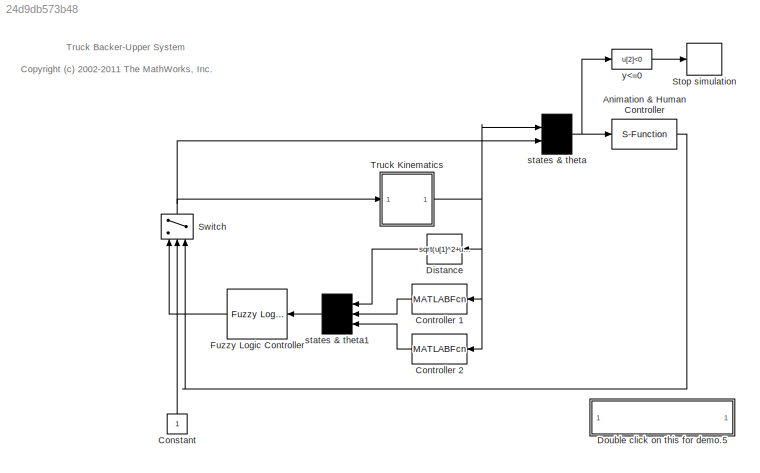
MODEL slx_24d9db573b48
KIND model
CONFIG AbsTol = 1e-6
CONFIG EnableMultiTasking = off
CONFIG FixedStep = 0.1
CONFIG MaxStep = 0.1
CONFIG MinStep = auto
CONFIG PreLoadFcn = inittbu;
CONFIG RelTol = 1e-3
CONFIG SampleTimeConstraint = Unconstrained
CONFIG Solver = ode3
CONFIG SolverName = ode3
CONFIG StartTime = 0.0
CONFIG StopTime = 999999
WORKSPACE source: MAT-file member
WORKSPACE MCOS: class17 (value not decoded)
BLOCK [S-Function]  Animation & Human Controller
  EnableBusSupport = off
  FunctionName = animtbu
  Ports = [1, 1]
  SFcnIsStateOwnerBlock = off
  SFunctionDeploymentMode = off
BLOCK [Constant] Constant
BLOCK [MATLABFcn] Controller 1
  MATLABFcn = ctrltbu1
  OutputDimensions = 1
  Ports = [1, 1]
BLOCK [MATLABFcn] Controller 2
  MATLABFcn = ctrltbu2
  OutputDimensions = 1
  Ports = [1, 1]
BLOCK [Fcn] Distance
  Expr = sqrt(u[1]^2+u[2]^2)
BLOCK [SubSystem] Double click on this for demo.5
  OpenFcn = inittbu
  Ports = []
  RequestExecContextInheritance = off
  ShowPortLabels = none
BLOCK [Reference] Fuzzy Logic Controller  REF=fuzblock/Fuzzy Logic   (lib defined in mdl_858b3b3e7478)
Controller
  Ports = [1, 1]
  SourceBlock = fuzblock/Fuzzy Logic \nController
  SourceProductBaseCode = FL
  SourceProductName = Fuzzy Logic Toolbox
  SourceType = Fuzzy Inference System
BLOCK [Stop] Stop simulation
BLOCK [Switch] Switch
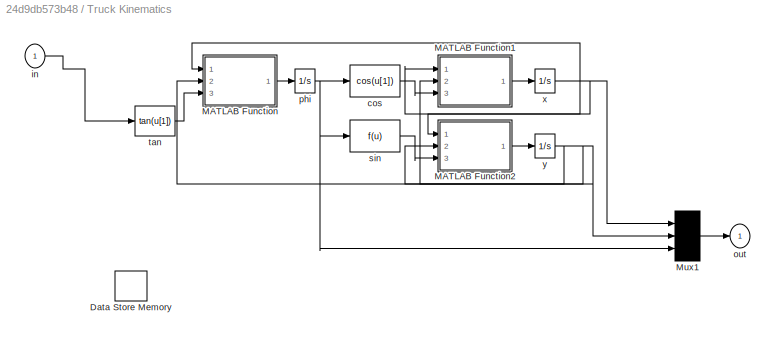
BLOCK [SubSystem] Truck Kinematics
  Ports = [1, 1]
  RequestExecContextInheritance = off
  ShowPortLabels = none
BLOCK [DataStoreMemory] Truck Kinematics/Data Store Memory
  DataStoreName = count
  OutDataTypeStr = double
  ReadBeforeWriteMsg = warning
  ShowAdditionalParam = off
  SignalType = real
  WriteAfterReadMsg = warning
  WriteAfterWriteMsg = warning
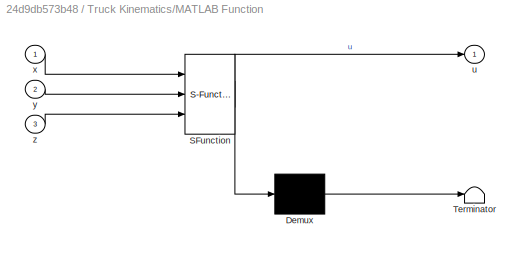
BLOCK [SubSystem] Truck Kinematics/MATLAB Function
  ErrorFcn = Stateflow.Translate.translate
  PermitHierarchicalResolution = ExplicitOnly
  Ports = [3, 1]
  RequestExecContextInheritance = off
  SFBlockType = MATLAB Function
  TreatAsAtomicUnit = on
BLOCK [Demux] Truck Kinematics/MATLAB Function/ Demux 
  Outputs = 1
  Ports = [1, 1]
BLOCK [S-Function] Truck Kinematics/MATLAB Function/ SFunction 
  EnableBusSupport = on
  FunctionName = sf_sfun
  PortCounts = [3 2]
  Ports = [3, 2]
  SFcnIsStateOwnerBlock = off
  SFunctionDeploymentMode = off
  Tag = Stateflow S-Function sltbu 2
BLOCK [Terminator] Truck Kinematics/MATLAB Function/ Terminator 
BLOCK [Outport] Truck Kinematics/MATLAB Function/u
  IconDisplay = Port number
BLOCK [Inport] Truck Kinematics/MATLAB Function/x
  IconDisplay = Port number
BLOCK [Inport] Truck Kinematics/MATLAB Function/y
  IconDisplay = Port number
  Port = 2
BLOCK [Inport] Truck Kinematics/MATLAB Function/z
  IconDisplay = Port number
  Port = 3
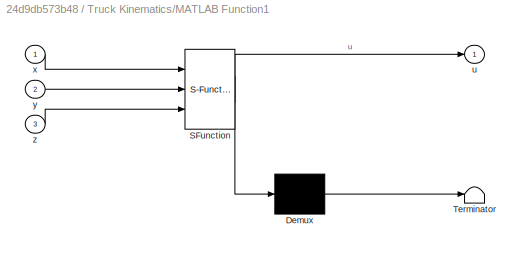
BLOCK [SubSystem] Truck Kinematics/MATLAB Function1
  ErrorFcn = Stateflow.Translate.translate
  PermitHierarchicalResolution = ExplicitOnly
  Ports = [3, 1]
  RequestExecContextInheritance = off
  SFBlockType = MATLAB Function
  TreatAsAtomicUnit = on
BLOCK [Demux] Truck Kinematics/MATLAB Function1/ Demux 
  Outputs = 1
  Ports = [1, 1]
BLOCK [S-Function] Truck Kinematics/MATLAB Function1/ SFunction 
  EnableBusSupport = on
  FunctionName = sf_sfun
  PortCounts = [3 2]
  Ports = [3, 2]
  SFcnIsStateOwnerBlock = off
  SFunctionDeploymentMode = off
  Tag = Stateflow S-Function sltbu 1
BLOCK [Terminator] Truck Kinematics/MATLAB Function1/ Terminator 
BLOCK [Outport] Truck Kinematics/MATLAB Function1/u
  IconDisplay = Port number
BLOCK [Inport] Truck Kinematics/MATLAB Function1/x
  IconDisplay = Port number
BLOCK [Inport] Truck Kinematics/MATLAB Function1/y
  IconDisplay = Port number
  Port = 2
BLOCK [Inport] Truck Kinematics/MATLAB Function1/z
  IconDisplay = Port number
  Port = 3
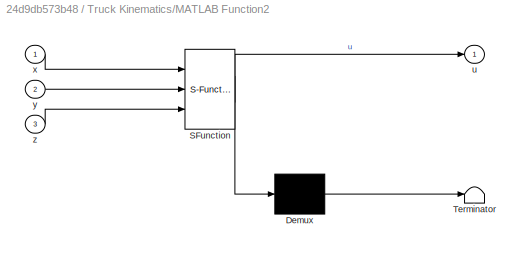
BLOCK [SubSystem] Truck Kinematics/MATLAB Function2
  ErrorFcn = Stateflow.Translate.translate
  PermitHierarchicalResolution = ExplicitOnly
  Ports = [3, 1]
  RequestExecContextInheritance = off
  SFBlockType = MATLAB Function
  TreatAsAtomicUnit = on
BLOCK [Demux] Truck Kinematics/MATLAB Function2/ Demux 
  Outputs = 1
  Ports = [1, 1]
BLOCK [S-Function] Truck Kinematics/MATLAB Function2/ SFunction 
  EnableBusSupport = on
  FunctionName = sf_sfun
  PortCounts = [3 2]
  Ports = [3, 2]
  SFcnIsStateOwnerBlock = off
  SFunctionDeploymentMode = off
  Tag = Stateflow S-Function sltbu 3
BLOCK [Terminator] Truck Kinematics/MATLAB Function2/ Terminator 
BLOCK [Outport] Truck Kinematics/MATLAB Function2/u
  IconDisplay = Port number
BLOCK [Inport] Truck Kinematics/MATLAB Function2/x
  IconDisplay = Port number
BLOCK [Inport] Truck Kinematics/MATLAB Function2/y
  IconDisplay = Port number
  Port = 2
BLOCK [Inport] Truck Kinematics/MATLAB Function2/z
  IconDisplay = Port number
  Port = 3
BLOCK [Mux] Truck Kinematics/Mux1
  Inputs = 3
  Ports = [3, 1]
BLOCK [Fcn] Truck Kinematics/cos
  Expr = cos(u[1])
BLOCK [Inport] Truck Kinematics/in
  IconDisplay = Port number
BLOCK [Outport] Truck Kinematics/out
  IconDisplay = Port number
  InitialOutput = 0
BLOCK [Integrator] Truck Kinematics/phi
  InitialCondition = init_cond(3)
  Ports = [1, 1]
BLOCK [Fcn] Truck Kinematics/sin
BLOCK [Fcn] Truck Kinematics/tan
  Expr = tan(u[1])
BLOCK [Integrator] Truck Kinematics/x
  InitialCondition = init_cond(1)
  Ports = [1, 1]
BLOCK [Integrator] Truck Kinematics/y
  InitialCondition = init_cond(2)
  Ports = [1, 1]
BLOCK [Mux] states & theta
  Inputs = [3 1]
  Ports = [2, 1]
BLOCK [Mux] states & theta1
  Inputs = 3
  Ports = [3, 1]
BLOCK [Fcn] y<=0
  Expr = u[2]<0
ANNOTATION (root): <copyright redacted>
ANNOTATION (root): Truck Backer-Upper System
LINE  Animation & Human Controller:1 -> Switch:3
LINE Constant:1 -> Switch:2
LINE Controller 1:1 -> states & theta1:2
LINE Controller 2:1 -> states & theta1:3
LINE Distance:1 -> states & theta1:1
LINE Fuzzy Logic Controller:1 -> Switch:1
NET Switch:1 -> Truck Kinematics:1, states & theta:2
LINE Truck Kinematics/MATLAB Function1:1 -> Truck Kinematics/x:1
LINE Truck Kinematics/MATLAB Function2:1 -> Truck Kinematics/y:1
LINE Truck Kinematics/MATLAB Function:1 -> Truck Kinematics/phi:1
LINE Truck Kinematics/Mux1:1 -> Truck Kinematics/out:1
LINE Truck Kinematics/cos:1 -> Truck Kinematics/MATLAB Function1:3
LINE Truck Kinematics/in:1 -> Truck Kinematics/tan:1
NET Truck Kinematics/phi:1 -> Truck Kinematics/Mux1:3, Truck Kinematics/cos:1, Truck Kinematics/sin:1
LINE Truck Kinematics/sin:1 -> Truck Kinematics/MATLAB Function2:3
LINE Truck Kinematics/tan:1 -> Truck Kinematics/MATLAB Function:3
NET Truck Kinematics/x:1 -> Truck Kinematics/MATLAB Function1:1, Truck Kinematics/MATLAB Function2:1, Truck Kinematics/MATLAB Function:1, Truck Kinematics/Mux1:1
NET Truck Kinematics/y:1 -> Truck Kinematics/MATLAB Function1:2, Truck Kinematics/MATLAB Function2:2, Truck Kinematics/MATLAB Function:2, Truck Kinematics/Mux1:2
NET Truck Kinematics:1 -> Controller 1:1, Controller 2:1, Distance:1, states & theta:1
LINE states & theta1:1 -> Fuzzy Logic Controller:1
NET states & theta:1 ->  Animation & Human Controller:1, y<=0:1
LINE y<=0:1 -> Stop simulation:1
note: NET lines group one-source signal fan-out (src -> all destinations, sorted); 1:1 wires keep LINE
CHART Truck
Kinematics/MATLAB Function1 states=1 transitions=1
  STATE_LABEL 'eML_blk_kernel()'
  STATE_LABEL 'SCRIPT:\nfunction u=fcn(x,y,z)\n%#codegen\nglobal count;\ndis=sqrt(x*x+y*y);\nspeed=dis;\nif count==1\n if dis > 50\n     speed = sqrt(x*x+y*y);\n else\n     if dis>25\n     speed = exp(sqrt(x*x+y*y)/50);\n     else\n         speed = exp(sqrt(x*x+y*y)/100);\n     end\n end\n u=z*(-speed/8);\nelse\n    u=z*0.1;\nend'
CHART Truck
Kinematics/MATLAB Function states=1 transitions=1
  STATE_LABEL 'eML_blk_kernel()'
  STATE_LABEL 'SCRIPT:\nfunction u=fcn(x,y,z)\n%#codegen\nglobal count;\ndis=sqrt(x*x+y*y);\nspeed=dis;\nif y>4\n    count=1;\nend\nif count==1\n if dis > 50\n     speed = sqrt(x*x+y*y);\n else\n     if dis>25\n     speed = exp(sqrt(x*x+y*y)/50);\n     else\n         speed = exp(sqrt(x*x+y*y)/100);\n     end\n end\n u=z*(-speed/8);\nelse\n    u=z*0.1/4;\nend'
CHART Truck
Kinematics/MATLAB Function2 states=1 transitions=1
  STATE_LABEL 'eML_blk_kernel()'
  STATE_LABEL 'SCRIPT:\nfunction u=fcn(x,y,z)\n%#codegen\nglobal count;\ndis=sqrt(x*x+y*y);\nspeed=dis;\nif count==1\n if dis > 50\n     speed = sqrt(x*x+y*y);\n else\n     if dis>25\n     speed = exp(sqrt(x*x+y*y)/50);\n     else\n         speed = exp(sqrt(x*x+y*y)/100);\n     end\n end\n u=z*(-speed/8);\nelse\n    u=z*0.1;\nend'
